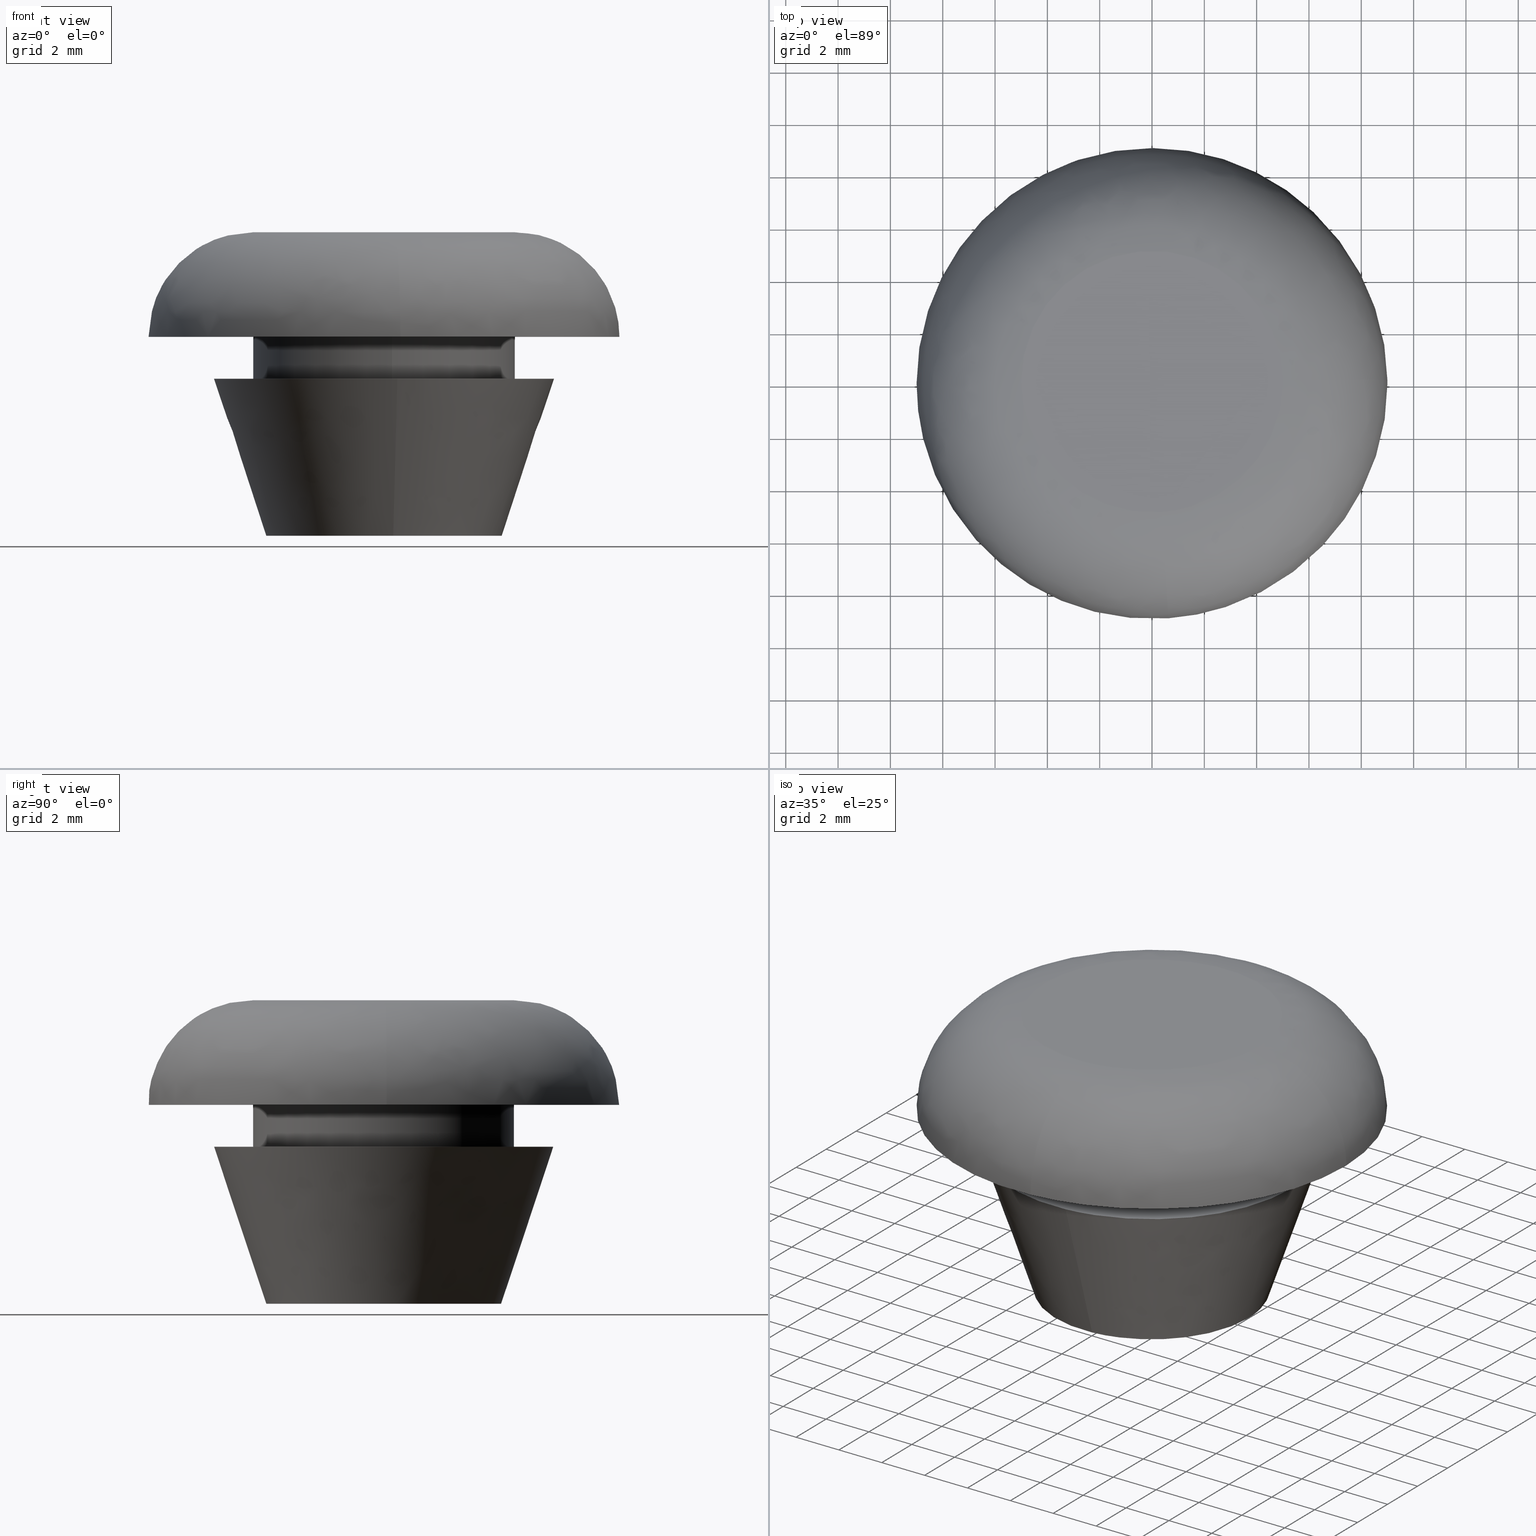
[diagram: canonical four-view strip — front | top / right | iso, engineering-drawing reading convention]
A machine part, canonical four-view strip (front | top / right | iso — engineering-drawing reading convention). The complete STEP part file that produces these views, byte-faithful:
ISO-10303-21;
HEADER;
/****************************************************************
 * Generated by software with PDE/Lib inside                    *
 * PDElib Version 4.4.1-0003, patched  Thursday August 19 11:58 *
 * International Technegroup Inc. (www.iti-oh.com)              *
 ****************************************************************/
FILE_DESCRIPTION((''),'2;1');
FILE_NAME('','2005-12-15T09:46:20',(''),(''),'','CADfix','');
FILE_SCHEMA(('AUTOMOTIVE_DESIGN'));
ENDSEC;
DATA;
#5=APPLICATION_CONTEXT('automotive design');
#6=APPLICATION_PROTOCOL_DEFINITION('Draft International Standard','automotive_design',1998,#5);
#7=PRODUCT_CONTEXT('None',#5,'mechanical');
#8=PRODUCT('cushion','','None',(#7));
#9=PRODUCT_RELATED_PRODUCT_CATEGORY('part','description',(#8));
#10=PRODUCT_DEFINITION_FORMATION('None','None',#8);
#11=PRODUCT_DEFINITION_CONTEXT('part definition',#5,'design');
#12=PRODUCT_DEFINITION('None','None',#10,#11);
#18=(NAMED_UNIT(*)PLANE_ANGLE_UNIT()SI_UNIT($,.RADIAN.));
#19=DIMENSIONAL_EXPONENTS(0.0,0.0,0.0,0.0,0.0,0.0,0.0);
#20=PLANE_ANGLE_MEASURE_WITH_UNIT(PLANE_ANGLE_MEASURE(0.017453292500000),#18);
#24=(CONVERSION_BASED_UNIT('DEGREE',#20)NAMED_UNIT(#19)PLANE_ANGLE_UNIT());
#28=(NAMED_UNIT(*)SI_UNIT($,.STERADIAN.)SOLID_ANGLE_UNIT());
#32=(LENGTH_UNIT()NAMED_UNIT(*)SI_UNIT(.MILLI.,.METRE.));
#34=UNCERTAINTY_MEASURE_WITH_UNIT(LENGTH_MEASURE(0.001000000000000),#32,'DISTANCE_ACCURACY_VALUE','');
#36=(GEOMETRIC_REPRESENTATION_CONTEXT(3)GLOBAL_UNCERTAINTY_ASSIGNED_CONTEXT((#34))GLOBAL_UNIT_ASSIGNED_CONTEXT((#24,#28,#32))REPRESENTATION_CONTEXT('None','None'));
#37=AXIS2_PLACEMENT_3D('',#38,#39,#40);
#38=CARTESIAN_POINT('',(0.0,0.0,0.0));
#39=DIRECTION('',(0.0,0.0,1.0));
#40=DIRECTION('',(1.0,0.0,0.0));
#41=ADVANCED_BREP_SHAPE_REPRESENTATION('',(#37,#895),#36);
#42=PRODUCT_DEFINITION_SHAPE('','',#12);
#43=SHAPE_DEFINITION_REPRESENTATION(#42,#41);
#44=CARTESIAN_POINT('',(0.354102703970275,-2.979028579091000,7.790000000000001));
#45=CARTESIAN_POINT('',(0.268844185913933,-2.989162846345817,7.790000000000001));
#46=CARTESIAN_POINT('',(0.183145618604571,-2.994404395265600,7.790000000000001));
#47=CARTESIAN_POINT('',(-2.811258776661029,-3.177550013870171,7.790000000000001));
#48=CARTESIAN_POINT('',(-2.994404395265600,-0.183145618604571,7.790000000000001));
#49=CARTESIAN_POINT('',(-3.177550013870171,2.811258776661029,7.790000000000001));
#50=CARTESIAN_POINT('',(-0.183145618604571,2.994404395265600,7.790000000000001));
#51=CARTESIAN_POINT('',(0.354102703970275,-2.979028579091000,-0.194750000000000));
#52=CARTESIAN_POINT('',(0.268844185913933,-2.989162846345817,-0.194750000000000));
#53=CARTESIAN_POINT('',(0.183145618604571,-2.994404395265600,-0.194750000000000));
#54=CARTESIAN_POINT('',(-2.811258776661029,-3.177550013870171,-0.194750000000000));
#55=CARTESIAN_POINT('',(-2.994404395265600,-0.183145618604571,-0.194750000000000));
#56=CARTESIAN_POINT('',(-3.177550013870171,2.811258776661029,-0.194750000000000));
#57=CARTESIAN_POINT('',(-0.183145618604571,2.994404395265600,-0.194750000000000));
#65=(BOUNDED_SURFACE()B_SPLINE_SURFACE(2,1,((#44,#51),(#45,#52),(#46,#53),(#47,#54),(#48,#55),(#49,#56),(#50,#57)),.UNSPECIFIED.,.F.,.F.,.U.)B_SPLINE_SURFACE_WITH_KNOTS((3,2,2,3),(2,2),(0.0,0.198822509939086,5.169385258416225,10.139948006893370),(0.0,7.984750000000001),.UNSPECIFIED.)GEOMETRIC_REPRESENTATION_ITEM()RATIONAL_B_SPLINE_SURFACE(((0.977505800795127,0.977505800795127),(0.988284271247462,0.988284271247462),(1.0,1.0),(0.707106781186548,0.707106781186548),(1.0,1.0),(0.707106781186548,0.707106781186548),(1.0,1.0)))REPRESENTATION_ITEM('')SURFACE());
#66=CARTESIAN_POINT('',(0.354102703981138,-2.979028579089708,7.600000000000000));
#67=VERTEX_POINT('',#66);
#68=CARTESIAN_POINT('',(-3.0,0.0,7.600000000000000));
#69=VERTEX_POINT('',#68);
#70=CARTESIAN_POINT('',(0.354102703981138,-2.979028579089708,7.600000000000000));
#71=CARTESIAN_POINT('',(0.177672358966708,-3.0,7.600000000000000));
#72=CARTESIAN_POINT('',(0.0,-3.0,7.600000000000000));
#73=CARTESIAN_POINT('',(-3.0,-3.0,7.600000000000000));
#74=CARTESIAN_POINT('',(-3.0,0.0,7.600000000000000));
#82=(BOUNDED_CURVE()B_SPLINE_CURVE(2,(#70,#71,#72,#73,#74),.UNSPECIFIED.,.F.,.U.)B_SPLINE_CURVE_WITH_KNOTS((3,2,3),(0.229562473514412,0.250000000000000,0.500000000000000),.UNSPECIFIED.)CURVE()GEOMETRIC_REPRESENTATION_ITEM()RATIONAL_B_SPLINE_CURVE((0.956026754185470,0.976055948332203,1.0,0.707106781186548,1.0))REPRESENTATION_ITEM(''));
#83=EDGE_CURVE('',#67,#69,#82,.T.);
#84=ORIENTED_EDGE('',*,*,#83,.F.);
#85=CARTESIAN_POINT('',(0.354097191598257,-2.979029234309628,5.394914E-016));
#86=VERTEX_POINT('',#85);
#87=CARTESIAN_POINT('',(0.354102703981138,-2.979028579089708,7.600000000000000));
#88=CARTESIAN_POINT('',(0.354097191598257,-2.979029234309628,5.394914E-016));
#89=QUASI_UNIFORM_CURVE('',1,(#87,#88),.UNSPECIFIED.,.F.,.U.);
#90=EDGE_CURVE('',#67,#86,#89,.T.);
#91=ORIENTED_EDGE('',*,*,#90,.T.);
#92=CARTESIAN_POINT('',(-3.0,0.0,0.0));
#93=VERTEX_POINT('',#92);
#94=CARTESIAN_POINT('',(0.354097191598257,-2.979029234309628,5.394914E-016));
#95=CARTESIAN_POINT('',(0.177669573632440,-3.000000000000000,0.0));
#96=CARTESIAN_POINT('',(0.0,-3.0,0.0));
#97=CARTESIAN_POINT('',(-3.0,-3.0,0.0));
#98=CARTESIAN_POINT('',(-3.0,0.0,0.0));
#106=(BOUNDED_CURVE()B_SPLINE_CURVE(2,(#94,#95,#96,#97,#98),.UNSPECIFIED.,.F.,.U.)B_SPLINE_CURVE_WITH_KNOTS((3,2,3),(0.229562786238015,0.250000000000000,0.500000000000000),.UNSPECIFIED.)CURVE()GEOMETRIC_REPRESENTATION_ITEM()RATIONAL_B_SPLINE_CURVE((0.956027367137448,0.976056314710695,1.0,0.707106781186548,1.0))REPRESENTATION_ITEM(''));
#107=EDGE_CURVE('',#86,#93,#106,.T.);
#108=ORIENTED_EDGE('',*,*,#107,.T.);
#109=CARTESIAN_POINT('',(-0.183145618620295,2.994404395264639,1.110223E-016));
#110=VERTEX_POINT('',#109);
#111=CARTESIAN_POINT('',(-3.0,0.0,0.0));
#112=CARTESIAN_POINT('',(-3.0,2.822118200687374,0.0));
#113=CARTESIAN_POINT('',(-0.183145618620295,2.994404395264639,1.110223E-016));
#121=(BOUNDED_CURVE()B_SPLINE_CURVE(2,(#111,#112,#113),.UNSPECIFIED.,.F.,.U.)B_SPLINE_CURVE_WITH_KNOTS((3,3),(0.500000000000000,0.739332962240155),.UNSPECIFIED.)CURVE()GEOMETRIC_REPRESENTATION_ITEM()RATIONAL_B_SPLINE_CURVE((1.0,0.719603993285290,0.976072041669316))REPRESENTATION_ITEM(''));
#122=EDGE_CURVE('',#93,#110,#121,.T.);
#123=ORIENTED_EDGE('',*,*,#122,.T.);
#124=CARTESIAN_POINT('',(-0.183145618620296,2.994404395264639,7.600000000000000));
#125=VERTEX_POINT('',#124);
#126=CARTESIAN_POINT('',(-0.183145618620296,2.994404395264639,7.600000000000000));
#127=CARTESIAN_POINT('',(-0.183145618620295,2.994404395264639,1.110223E-016));
#128=QUASI_UNIFORM_CURVE('',1,(#126,#127),.UNSPECIFIED.,.F.,.U.);
#129=EDGE_CURVE('',#125,#110,#128,.T.);
#130=ORIENTED_EDGE('',*,*,#129,.F.);
#131=CARTESIAN_POINT('',(-3.0,0.0,7.600000000000000));
#132=CARTESIAN_POINT('',(-3.0,2.822118200687374,7.599999999999999));
#133=CARTESIAN_POINT('',(-0.183145618620296,2.994404395264639,7.600000000000000));
#141=(BOUNDED_CURVE()B_SPLINE_CURVE(2,(#131,#132,#133),.UNSPECIFIED.,.F.,.U.)B_SPLINE_CURVE_WITH_KNOTS((3,3),(0.500000000000000,0.739332962240155),.UNSPECIFIED.)CURVE()GEOMETRIC_REPRESENTATION_ITEM()RATIONAL_B_SPLINE_CURVE((1.0,0.719603993285290,0.976072041669316))REPRESENTATION_ITEM(''));
#142=EDGE_CURVE('',#69,#125,#141,.T.);
#143=ORIENTED_EDGE('',*,*,#142,.F.);
#144=EDGE_LOOP('',(#84,#91,#108,#123,#130,#143));
#145=FACE_OUTER_BOUND('',#144,.T.);
#146=ADVANCED_FACE('',(#145),#65,.F.);
#147=CARTESIAN_POINT('',(-0.224409090726152,2.991880613194139,7.790000000000003));
#148=CARTESIAN_POINT('',(-0.203836405582317,2.993138892521066,7.790000000000002));
#149=CARTESIAN_POINT('',(2.811258776661029,3.177550013870171,7.790000000000001));
#150=CARTESIAN_POINT('',(2.994404395265600,0.183145618604571,7.790000000000001));
#151=CARTESIAN_POINT('',(3.167358590197582,-2.644630472518504,7.790000000000001));
#152=CARTESIAN_POINT('',(0.333038185362532,-2.981532416432200,7.790000000000000));
#153=CARTESIAN_POINT('',(0.312086881210587,-2.984022796519179,7.790000000000001));
#154=CARTESIAN_POINT('',(-0.224409090726152,2.991880613194139,-0.194750000000000));
#155=CARTESIAN_POINT('',(-0.203836405582317,2.993138892521066,-0.194750000000000));
#156=CARTESIAN_POINT('',(2.811258776661029,3.177550013870171,-0.194750000000000));
#157=CARTESIAN_POINT('',(2.994404395265600,0.183145618604571,-0.194750000000000));
#158=CARTESIAN_POINT('',(3.167358590197582,-2.644630472518504,-0.194750000000000));
#159=CARTESIAN_POINT('',(0.333038185362532,-2.981532416432200,-0.194750000000000));
#160=CARTESIAN_POINT('',(0.312086881210587,-2.984022796519179,-0.194750000000000));
#168=(BOUNDED_SURFACE()B_SPLINE_SURFACE(2,1,((#147,#154),(#148,#155),(#149,#156),(#150,#157),(#151,#158),(#152,#159),(#153,#160)),.UNSPECIFIED.,.F.,.F.,.U.)B_SPLINE_SURFACE_WITH_KNOTS((3,1,2,1,3),(2,2),(0.0,0.048711545651409,5.019274294128548,9.791014532666601,9.839732435613659),(0.0,7.984750000000002),.UNSPECIFIED.)GEOMETRIC_REPRESENTATION_ITEM()RATIONAL_B_SPLINE_SURFACE(((1.005740710708698,1.005740710708698),(1.002870355354349,1.002870355354349),(0.707106781186548,0.707106781186548),(1.0,1.0),(0.718822509939086,0.718822509939086),(0.980146872359787,0.980146872359787),(0.982787943924448,0.982787943924448)))REPRESENTATION_ITEM('')SURFACE());
#169=CARTESIAN_POINT('',(3.0,0.0,7.600000000000000));
#170=VERTEX_POINT('',#169);
#171=CARTESIAN_POINT('',(3.0,0.0,7.600000000000000));
#172=CARTESIAN_POINT('',(3.0,-2.664523577834536,7.600000000000000));
#173=CARTESIAN_POINT('',(0.354102703981138,-2.979028579089708,7.600000000000000));
#181=(BOUNDED_CURVE()B_SPLINE_CURVE(2,(#171,#172,#173),.UNSPECIFIED.,.F.,.U.)B_SPLINE_CURVE_WITH_KNOTS((3,3),(0.0,0.229562473514412),.UNSPECIFIED.)CURVE()GEOMETRIC_REPRESENTATION_ITEM()RATIONAL_B_SPLINE_CURVE((1.0,0.731050832854344,0.956026754185470))REPRESENTATION_ITEM(''));
#182=EDGE_CURVE('',#170,#67,#181,.T.);
#183=ORIENTED_EDGE('',*,*,#182,.F.);
#184=CARTESIAN_POINT('',(-0.183145618620296,2.994404395264640,7.600000000000000));
#185=CARTESIAN_POINT('',(-0.091658289911536,3.000000000000000,7.600000000000001));
#186=CARTESIAN_POINT('',(0.0,3.0,7.600000000000000));
#187=CARTESIAN_POINT('',(3.0,3.0,7.600000000000000));
#188=CARTESIAN_POINT('',(3.0,0.0,7.600000000000000));
#196=(BOUNDED_CURVE()B_SPLINE_CURVE(2,(#184,#185,#186,#187,#188),.UNSPECIFIED.,.F.,.U.)B_SPLINE_CURVE_WITH_KNOTS((3,2,3),(0.739332962240156,0.750000000000000,1.0),.UNSPECIFIED.)CURVE()GEOMETRIC_REPRESENTATION_ITEM()RATIONAL_B_SPLINE_CURVE((0.976072041669318,0.987502787901259,1.0,0.707106781186548,1.0))REPRESENTATION_ITEM(''));
#197=EDGE_CURVE('',#125,#170,#196,.T.);
#198=ORIENTED_EDGE('',*,*,#197,.F.);
#199=ORIENTED_EDGE('',*,*,#129,.T.);
#200=CARTESIAN_POINT('',(3.0,0.0,0.0));
#201=VERTEX_POINT('',#200);
#202=CARTESIAN_POINT('',(-0.183145618620295,2.994404395264639,1.110223E-016));
#203=CARTESIAN_POINT('',(-0.091658289911535,3.0,0.0));
#204=CARTESIAN_POINT('',(0.0,3.0,0.0));
#205=CARTESIAN_POINT('',(3.0,3.0,0.0));
#206=CARTESIAN_POINT('',(3.0,0.0,0.0));
#214=(BOUNDED_CURVE()B_SPLINE_CURVE(2,(#202,#203,#204,#205,#206),.UNSPECIFIED.,.F.,.U.)B_SPLINE_CURVE_WITH_KNOTS((3,2,3),(0.739332962240156,0.750000000000000,1.0),.UNSPECIFIED.)CURVE()GEOMETRIC_REPRESENTATION_ITEM()RATIONAL_B_SPLINE_CURVE((0.976072041669318,0.987502787901259,1.0,0.707106781186548,1.0))REPRESENTATION_ITEM(''));
#215=EDGE_CURVE('',#110,#201,#214,.T.);
#216=ORIENTED_EDGE('',*,*,#215,.T.);
#217=CARTESIAN_POINT('',(3.0,0.0,0.0));
#218=CARTESIAN_POINT('',(3.000000000000001,-2.664528542979987,0.0));
#219=CARTESIAN_POINT('',(0.354097191598257,-2.979029234309628,5.394914E-016));
#227=(BOUNDED_CURVE()B_SPLINE_CURVE(2,(#217,#218,#219),.UNSPECIFIED.,.F.,.U.)B_SPLINE_CURVE_WITH_KNOTS((3,3),(0.0,0.229562786238015),.UNSPECIFIED.)CURVE()GEOMETRIC_REPRESENTATION_ITEM()RATIONAL_B_SPLINE_CURVE((1.0,0.731050466475852,0.956027367137448))REPRESENTATION_ITEM(''));
#228=EDGE_CURVE('',#201,#86,#227,.T.);
#229=ORIENTED_EDGE('',*,*,#228,.T.);
#230=ORIENTED_EDGE('',*,*,#90,.F.);
#231=EDGE_LOOP('',(#183,#198,#199,#216,#229,#230));
#232=FACE_OUTER_BOUND('',#231,.T.);
#233=ADVANCED_FACE('',(#232),#168,.F.);
#234=CARTESIAN_POINT('',(-0.590171173283792,4.965047631818332,7.640000000000002));
#235=CARTESIAN_POINT('',(-0.448073643189888,4.981938077243028,7.640000000000002));
#236=CARTESIAN_POINT('',(-0.305242697674285,4.990673992109334,7.640000000000001));
#237=CARTESIAN_POINT('',(4.685431294435048,5.295916689783620,7.640000000000001));
#238=CARTESIAN_POINT('',(4.990673992109334,0.305242697674285,7.640000000000001));
#239=CARTESIAN_POINT('',(5.295916689783620,-4.685431294435048,7.640000000000001));
#240=CARTESIAN_POINT('',(0.305242697674285,-4.990673992109334,7.640000000000001));
#241=CARTESIAN_POINT('',(-0.590171173283792,4.965047631818332,5.959000000000001));
#242=CARTESIAN_POINT('',(-0.448073643189888,4.981938077243028,5.959000000000000));
#243=CARTESIAN_POINT('',(-0.305242697674285,4.990673992109334,5.958999999999999));
#244=CARTESIAN_POINT('',(4.685431294435048,5.295916689783620,5.958999999999999));
#245=CARTESIAN_POINT('',(4.990673992109334,0.305242697674285,5.958999999999999));
#246=CARTESIAN_POINT('',(5.295916689783620,-4.685431294435048,5.958999999999999));
#247=CARTESIAN_POINT('',(0.305242697674285,-4.990673992109334,5.958999999999999));
#255=(BOUNDED_SURFACE()B_SPLINE_SURFACE(2,1,((#234,#241),(#235,#242),(#236,#243),(#237,#244),(#238,#245),(#239,#246),(#240,#247)),.UNSPECIFIED.,.F.,.F.,.U.)B_SPLINE_SURFACE_WITH_KNOTS((3,2,2,3),(2,2),(0.0,0.331370849898476,8.615642097360375,16.899913344822270),(0.0,1.0),.UNSPECIFIED.)GEOMETRIC_REPRESENTATION_ITEM()RATIONAL_B_SPLINE_SURFACE(((0.977505800795127,0.977505800795127),(0.988284271247462,0.988284271247462),(1.0,1.0),(0.707106781186548,0.707106781186548),(1.0,1.0),(0.707106781186548,0.707106781186548),(1.0,1.0)))REPRESENTATION_ITEM('')SURFACE());
#256=CARTESIAN_POINT('',(-0.590169455614432,4.965047835988770,7.600000000000016));
#257=VERTEX_POINT('',#256);
#258=CARTESIAN_POINT('',(5.0,0.0,7.600000000000000));
#259=VERTEX_POINT('',#258);
#260=CARTESIAN_POINT('',(-0.590169455614432,4.965047835988770,7.600000000000016));
#261=CARTESIAN_POINT('',(-0.296119730345424,4.999999999999999,7.600000000000000));
#262=CARTESIAN_POINT('',(0.0,5.0,7.600000000000000));
#263=CARTESIAN_POINT('',(5.000000000000001,5.000000000000001,7.600000000000000));
#264=CARTESIAN_POINT('',(5.0,0.0,7.600000000000000));
#272=(BOUNDED_CURVE()B_SPLINE_CURVE(2,(#260,#261,#262,#263,#264),.UNSPECIFIED.,.F.,.U.)B_SPLINE_CURVE_WITH_KNOTS((3,2,3),(0.229562531982699,0.250000000000000,0.500000000000000),.UNSPECIFIED.)CURVE()GEOMETRIC_REPRESENTATION_ITEM()RATIONAL_B_SPLINE_CURVE((0.956026868785737,0.976056016832063,1.0,0.707106781186548,1.0))REPRESENTATION_ITEM(''));
#273=EDGE_CURVE('',#257,#259,#272,.T.);
#274=ORIENTED_EDGE('',*,*,#273,.T.);
#275=CARTESIAN_POINT('',(0.305237013104272,-4.990674339786032,7.599999999999929));
#276=VERTEX_POINT('',#275);
#277=CARTESIAN_POINT('',(5.0,0.0,7.600000000000000));
#278=CARTESIAN_POINT('',(4.999999999999999,-4.703535702044791,7.599999999999999));
#279=CARTESIAN_POINT('',(0.305237013104272,-4.990674339786032,7.599999999999930));
#287=(BOUNDED_CURVE()B_SPLINE_CURVE(2,(#277,#278,#279),.UNSPECIFIED.,.F.,.U.)B_SPLINE_CURVE_WITH_KNOTS((3,3),(0.500000000000000,0.739333158779441),.UNSPECIFIED.)CURVE()GEOMETRIC_REPRESENTATION_ITEM()RATIONAL_B_SPLINE_CURVE((1.0,0.719603763025194,0.976072462890779))REPRESENTATION_ITEM(''));
#288=EDGE_CURVE('',#259,#276,#287,.T.);
#289=ORIENTED_EDGE('',*,*,#288,.T.);
#290=CARTESIAN_POINT('',(0.305237081557413,-4.990674335599413,6.0));
#291=VERTEX_POINT('',#290);
#292=CARTESIAN_POINT('',(0.305237013104272,-4.990674339786032,7.599999999999929));
#293=CARTESIAN_POINT('',(0.305237081557413,-4.990674335599413,6.0));
#294=QUASI_UNIFORM_CURVE('',1,(#292,#293),.UNSPECIFIED.,.F.,.U.);
#295=EDGE_CURVE('',#276,#291,#294,.T.);
#296=ORIENTED_EDGE('',*,*,#295,.T.);
#297=CARTESIAN_POINT('',(5.0,0.0,6.0));
#298=VERTEX_POINT('',#297);
#299=CARTESIAN_POINT('',(5.0,0.0,6.0));
#300=CARTESIAN_POINT('',(4.999999999999999,-4.703535637409559,6.0));
#301=CARTESIAN_POINT('',(0.305237081557413,-4.990674335599414,6.000000000000001));
#309=(BOUNDED_CURVE()B_SPLINE_CURVE(2,(#299,#300,#301),.UNSPECIFIED.,.F.,.U.)B_SPLINE_CURVE_WITH_KNOTS((3,3),(0.500000000000000,0.739333156412752),.UNSPECIFIED.)CURVE()GEOMETRIC_REPRESENTATION_ITEM()RATIONAL_B_SPLINE_CURVE((1.0,0.719603765797943,0.976072457818505))REPRESENTATION_ITEM(''));
#310=EDGE_CURVE('',#298,#291,#309,.T.);
#311=ORIENTED_EDGE('',*,*,#310,.F.);
#312=CARTESIAN_POINT('',(-0.590169476332178,4.965047833526166,6.0));
#313=VERTEX_POINT('',#312);
#314=CARTESIAN_POINT('',(-0.590169476332178,4.965047833526166,6.000000000000001));
#315=CARTESIAN_POINT('',(-0.296119740813809,5.0,6.0));
#316=CARTESIAN_POINT('',(0.0,5.0,6.0));
#317=CARTESIAN_POINT('',(5.000000000000001,5.000000000000001,6.0));
#318=CARTESIAN_POINT('',(5.0,0.0,6.0));
#326=(BOUNDED_CURVE()B_SPLINE_CURVE(2,(#314,#315,#316,#317,#318),.UNSPECIFIED.,.F.,.U.)B_SPLINE_CURVE_WITH_KNOTS((3,2,3),(0.229562531277496,0.250000000000000,0.500000000000000),.UNSPECIFIED.)CURVE()GEOMETRIC_REPRESENTATION_ITEM()RATIONAL_B_SPLINE_CURVE((0.956026867403510,0.976056016005866,1.0,0.707106781186548,1.0))REPRESENTATION_ITEM(''));
#327=EDGE_CURVE('',#313,#298,#326,.T.);
#328=ORIENTED_EDGE('',*,*,#327,.F.);
#329=CARTESIAN_POINT('',(-0.590169455614432,4.965047835988770,7.600000000000016));
#330=CARTESIAN_POINT('',(-0.590169476332178,4.965047833526166,6.0));
#331=QUASI_UNIFORM_CURVE('',1,(#329,#330),.UNSPECIFIED.,.F.,.U.);
#332=EDGE_CURVE('',#257,#313,#331,.T.);
#333=ORIENTED_EDGE('',*,*,#332,.F.);
#334=EDGE_LOOP('',(#274,#289,#296,#311,#328,#333));
#335=FACE_OUTER_BOUND('',#334,.T.);
#336=ADVANCED_FACE('',(#335),#255,.T.);
#337=CARTESIAN_POINT('',(0.305242697674285,-4.990673992109334,7.640000000000001));
#338=CARTESIAN_POINT('',(-4.685431294435048,-5.295916689783620,7.640000000000001));
#339=CARTESIAN_POINT('',(-4.990673992109334,-0.305242697674285,7.640000000000001));
#340=CARTESIAN_POINT('',(-5.278930983662638,4.407717454197504,7.640000000000001));
#341=CARTESIAN_POINT('',(-0.590171173283792,4.965047631818332,7.640000000000002));
#342=CARTESIAN_POINT('',(0.305242697674285,-4.990673992109334,5.958999999999999));
#343=CARTESIAN_POINT('',(-4.685431294435048,-5.295916689783620,5.958999999999999));
#344=CARTESIAN_POINT('',(-4.990673992109334,-0.305242697674285,5.958999999999999));
#345=CARTESIAN_POINT('',(-5.278930983662638,4.407717454197504,5.958999999999998));
#346=CARTESIAN_POINT('',(-0.590171173283792,4.965047631818332,5.959000000000001));
#354=(BOUNDED_SURFACE()B_SPLINE_SURFACE(2,1,((#337,#342),(#338,#343),(#339,#344),(#340,#345),(#341,#346)),.UNSPECIFIED.,.F.,.F.,.U.)B_SPLINE_SURFACE_WITH_KNOTS((3,2,3),(2,2),(0.0,8.284271247461899,16.237171645025320),(0.0,1.0),.UNSPECIFIED.)GEOMETRIC_REPRESENTATION_ITEM()RATIONAL_B_SPLINE_SURFACE(((1.0,1.0),(0.707106781186548,0.707106781186548),(1.0,1.0),(0.718822509939086,0.718822509939086),(0.977505800795127,0.977505800795127)))REPRESENTATION_ITEM('')SURFACE());
#355=CARTESIAN_POINT('',(-5.0,0.0,7.600000000000000));
#356=VERTEX_POINT('',#355);
#357=CARTESIAN_POINT('',(-5.0,0.0,7.600000000000000));
#358=CARTESIAN_POINT('',(-5.0,4.440874176902134,7.600000000000000));
#359=CARTESIAN_POINT('',(-0.590169455614432,4.965047835988770,7.600000000000016));
#367=(BOUNDED_CURVE()B_SPLINE_CURVE(2,(#357,#358,#359),.UNSPECIFIED.,.F.,.U.)B_SPLINE_CURVE_WITH_KNOTS((3,3),(0.0,0.229562531982699),.UNSPECIFIED.)CURVE()GEOMETRIC_REPRESENTATION_ITEM()RATIONAL_B_SPLINE_CURVE((1.0,0.731050764354485,0.956026868785737))REPRESENTATION_ITEM(''));
#368=EDGE_CURVE('',#356,#257,#367,.T.);
#369=ORIENTED_EDGE('',*,*,#368,.T.);
#370=ORIENTED_EDGE('',*,*,#332,.T.);
#371=CARTESIAN_POINT('',(-5.0,0.0,6.0));
#372=VERTEX_POINT('',#371);
#373=CARTESIAN_POINT('',(-5.0,0.0,6.0));
#374=CARTESIAN_POINT('',(-5.0,4.440874158241168,6.0));
#375=CARTESIAN_POINT('',(-0.590169476332178,4.965047833526166,6.000000000000001));
#383=(BOUNDED_CURVE()B_SPLINE_CURVE(2,(#373,#374,#375),.UNSPECIFIED.,.F.,.U.)B_SPLINE_CURVE_WITH_KNOTS((3,3),(0.0,0.229562531277496),.UNSPECIFIED.)CURVE()GEOMETRIC_REPRESENTATION_ITEM()RATIONAL_B_SPLINE_CURVE((1.0,0.731050765180682,0.956026867403510))REPRESENTATION_ITEM(''));
#384=EDGE_CURVE('',#372,#313,#383,.T.);
#385=ORIENTED_EDGE('',*,*,#384,.F.);
#386=CARTESIAN_POINT('',(0.305237081557413,-4.990674335599414,6.000000000000001));
#387=CARTESIAN_POINT('',(0.152761000561227,-5.0,6.000000000000001));
#388=CARTESIAN_POINT('',(0.0,-5.0,6.0));
#389=CARTESIAN_POINT('',(-5.000000000000001,-5.000000000000001,6.0));
#390=CARTESIAN_POINT('',(-5.0,0.0,6.0));
#398=(BOUNDED_CURVE()B_SPLINE_CURVE(2,(#386,#387,#388,#389,#390),.UNSPECIFIED.,.F.,.U.)B_SPLINE_CURVE_WITH_KNOTS((3,2,3),(0.739333156412752,0.750000000000000,1.0),.UNSPECIFIED.)CURVE()GEOMETRIC_REPRESENTATION_ITEM()RATIONAL_B_SPLINE_CURVE((0.976072457818505,0.987503015388605,1.0,0.707106781186548,1.0))REPRESENTATION_ITEM(''));
#399=EDGE_CURVE('',#291,#372,#398,.T.);
#400=ORIENTED_EDGE('',*,*,#399,.F.);
#401=ORIENTED_EDGE('',*,*,#295,.F.);
#402=CARTESIAN_POINT('',(0.305237013104272,-4.990674339786032,7.599999999999930));
#403=CARTESIAN_POINT('',(0.152760966238695,-5.0,7.600000000000001));
#404=CARTESIAN_POINT('',(0.0,-5.0,7.600000000000000));
#405=CARTESIAN_POINT('',(-5.000000000000001,-5.000000000000001,7.600000000000000));
#406=CARTESIAN_POINT('',(-5.0,0.0,7.600000000000000));
#414=(BOUNDED_CURVE()B_SPLINE_CURVE(2,(#402,#403,#404,#405,#406),.UNSPECIFIED.,.F.,.U.)B_SPLINE_CURVE_WITH_KNOTS((3,2,3),(0.739333158779441,0.750000000000000,1.0),.UNSPECIFIED.)CURVE()GEOMETRIC_REPRESENTATION_ITEM()RATIONAL_B_SPLINE_CURVE((0.976072462890779,0.987503018161353,1.0,0.707106781186548,1.0))REPRESENTATION_ITEM(''));
#415=EDGE_CURVE('',#276,#356,#414,.T.);
#416=ORIENTED_EDGE('',*,*,#415,.T.);
#417=EDGE_LOOP('',(#369,#370,#385,#400,#401,#416));
#418=FACE_OUTER_BOUND('',#417,.T.);
#419=ADVANCED_FACE('',(#418),#354,.T.);
#420=CARTESIAN_POINT('',(-0.349142975988913,4.436282135112418,-0.150000000000000));
#421=CARTESIAN_POINT('',(-4.785425111101330,4.087139159123505,-0.150000000000000));
#422=CARTESIAN_POINT('',(-4.436282135112418,-0.349142975988913,-0.150000000000000));
#423=CARTESIAN_POINT('',(-4.087139159123505,-4.785425111101330,-0.150000000000000));
#424=CARTESIAN_POINT('',(0.349142975988913,-4.436282135112418,-0.150000000000000));
#425=CARTESIAN_POINT('',(-0.514005150887048,6.531054682619153,6.153750000000001));
#426=CARTESIAN_POINT('',(-7.045059833506200,6.017049531732106,6.153750000000003));
#427=CARTESIAN_POINT('',(-6.531054682619153,-0.514005150887048,6.153750000000001));
#428=CARTESIAN_POINT('',(-6.017049531732106,-7.045059833506200,6.153750000000003));
#429=CARTESIAN_POINT('',(0.514005150887048,-6.531054682619153,6.153750000000001));
#437=(BOUNDED_SURFACE()B_SPLINE_SURFACE(2,1,((#420,#425),(#421,#426),(#422,#427),(#423,#428),(#424,#429)),.UNSPECIFIED.,.F.,.F.,.U.)B_SPLINE_SURFACE_WITH_KNOTS((3,2,3),(2,2),(0.0,10.854466401986951,21.708932803973909),(0.0,6.644735933428809),.UNSPECIFIED.)GEOMETRIC_REPRESENTATION_ITEM()RATIONAL_B_SPLINE_SURFACE(((1.0,1.0),(0.707106781186548,0.707106781186548),(1.0,1.0),(0.707106781186548,0.707106781186548),(1.0,1.0)))REPRESENTATION_ITEM('')SURFACE());
#438=CARTESIAN_POINT('',(-4.500000000000000,0.0,0.0));
#439=VERTEX_POINT('',#438);
#440=CARTESIAN_POINT('',(-0.353063810381927,4.486127613227898,-0.000001661209573));
#441=VERTEX_POINT('',#440);
#442=CARTESIAN_POINT('',(-4.500000000000000,0.0,0.0));
#443=CARTESIAN_POINT('',(-4.499999978277276,4.159758868250052,-0.000000830604787));
#444=CARTESIAN_POINT('',(-0.353063810381927,4.486127613227898,-0.000001661209573));
#452=(BOUNDED_CURVE()B_SPLINE_CURVE(2,(#442,#443,#444),.UNSPECIFIED.,.F.,.U.)B_SPLINE_CURVE_WITH_KNOTS((3,3),(0.0,0.236331379997369),.UNSPECIFIED.)CURVE()GEOMETRIC_REPRESENTATION_ITEM()RATIONAL_B_SPLINE_CURVE((1.0,0.723120565623782,0.969723521799744))REPRESENTATION_ITEM(''));
#453=EDGE_CURVE('',#439,#441,#452,.T.);
#454=ORIENTED_EDGE('',*,*,#453,.F.);
#455=CARTESIAN_POINT('',(0.353063810381927,-4.486127613227898,-0.000001661209573));
#456=VERTEX_POINT('',#455);
#457=CARTESIAN_POINT('',(0.353063810381927,-4.486127613227898,-0.000001661209573));
#458=CARTESIAN_POINT('',(0.176804395584852,-4.499999457994606,-0.000001631042669));
#459=CARTESIAN_POINT('',(-0.000000041803015,-4.499999468839201,-0.000001598408310));
#460=CARTESIAN_POINT('',(-4.500000020080290,-4.499999744854223,-0.000000767803524));
#461=CARTESIAN_POINT('',(-4.500000000000000,0.0,0.0));
#469=(BOUNDED_CURVE()B_SPLINE_CURVE(2,(#457,#458,#459,#460,#461),.UNSPECIFIED.,.F.,.U.)B_SPLINE_CURVE_WITH_KNOTS((3,2,3),(0.736331379997369,0.750000000000000,1.0),.UNSPECIFIED.)CURVE()GEOMETRIC_REPRESENTATION_ITEM()RATIONAL_B_SPLINE_CURVE((0.969723521799744,0.983986215562766,1.0,0.707106781186547,1.0))REPRESENTATION_ITEM(''));
#470=EDGE_CURVE('',#456,#439,#469,.T.);
#471=ORIENTED_EDGE('',*,*,#470,.F.);
#472=CARTESIAN_POINT('',(0.509980382880330,-6.479961963647005,5.999997009518591));
#473=VERTEX_POINT('',#472);
#474=CARTESIAN_POINT('',(0.353063810381927,-4.486127613227898,-0.000001661209573));
#475=CARTESIAN_POINT('',(0.509980382880330,-6.479961963647005,5.999997009518591));
#476=QUASI_UNIFORM_CURVE('',1,(#474,#475),.UNSPECIFIED.,.F.,.U.);
#477=EDGE_CURVE('',#456,#473,#476,.T.);
#478=ORIENTED_EDGE('',*,*,#477,.T.);
#479=CARTESIAN_POINT('',(-6.500000000000000,0.0,6.0));
#480=VERTEX_POINT('',#479);
#481=CARTESIAN_POINT('',(0.509980382880330,-6.479961963647005,5.999997009518592));
#482=CARTESIAN_POINT('',(0.255383779694899,-6.499999024290850,5.999997063824478));
#483=CARTESIAN_POINT('',(-0.000000075253000,-6.499999043813085,5.999997122572222));
#484=CARTESIAN_POINT('',(-6.500000036148163,-6.499999540690751,5.999998617812927));
#485=CARTESIAN_POINT('',(-6.500000000000000,0.0,6.0));
#493=(BOUNDED_CURVE()B_SPLINE_CURVE(2,(#481,#482,#483,#484,#485),.UNSPECIFIED.,.F.,.U.)B_SPLINE_CURVE_WITH_KNOTS((3,2,3),(0.736331397486609,0.750000000000000,1.0),.UNSPECIFIED.)CURVE()GEOMETRIC_REPRESENTATION_ITEM()RATIONAL_B_SPLINE_CURVE((0.969723558298482,0.983986236052685,1.0,0.707106781186547,1.0))REPRESENTATION_ITEM(''));
#494=EDGE_CURVE('',#473,#480,#493,.T.);
#495=ORIENTED_EDGE('',*,*,#494,.T.);
#496=CARTESIAN_POINT('',(-0.509980382880330,6.479961963647005,5.999997009518590));
#497=VERTEX_POINT('',#496);
#498=CARTESIAN_POINT('',(-6.500000000000000,0.0,6.0));
#499=CARTESIAN_POINT('',(-6.499999960895162,6.008541104187772,5.999998504759296));
#500=CARTESIAN_POINT('',(-0.509980382880331,6.479961963647006,5.999997009518590));
#508=(BOUNDED_CURVE()B_SPLINE_CURVE(2,(#498,#499,#500),.UNSPECIFIED.,.F.,.U.)B_SPLINE_CURVE_WITH_KNOTS((3,3),(0.0,0.236331397486609),.UNSPECIFIED.)CURVE()GEOMETRIC_REPRESENTATION_ITEM()RATIONAL_B_SPLINE_CURVE((1.0,0.723120545133863,0.969723558298482))REPRESENTATION_ITEM(''));
#509=EDGE_CURVE('',#480,#497,#508,.T.);
#510=ORIENTED_EDGE('',*,*,#509,.T.);
#511=CARTESIAN_POINT('',(-0.353063810381927,4.486127613227898,-0.000001661209573));
#512=CARTESIAN_POINT('',(-0.509980382880330,6.479961963647005,5.999997009518590));
#513=QUASI_UNIFORM_CURVE('',1,(#511,#512),.UNSPECIFIED.,.F.,.U.);
#514=EDGE_CURVE('',#441,#497,#513,.T.);
#515=ORIENTED_EDGE('',*,*,#514,.F.);
#516=EDGE_LOOP('',(#454,#471,#478,#495,#510,#515));
#517=FACE_OUTER_BOUND('',#516,.T.);
#518=ADVANCED_FACE('',(#517),#437,.T.);
#519=CARTESIAN_POINT('',(0.349142975988913,-4.436282135112418,-0.150000000000000));
#520=CARTESIAN_POINT('',(4.785425111101330,-4.087139159123505,-0.150000000000000));
#521=CARTESIAN_POINT('',(4.436282135112418,0.349142975988913,-0.150000000000000));
#522=CARTESIAN_POINT('',(4.087139159123505,4.785425111101330,-0.150000000000000));
#523=CARTESIAN_POINT('',(-0.349142975988913,4.436282135112418,-0.150000000000000));
#524=CARTESIAN_POINT('',(0.514005150887048,-6.531054682619153,6.153750000000001));
#525=CARTESIAN_POINT('',(7.045059833506200,-6.017049531732106,6.153750000000003));
#526=CARTESIAN_POINT('',(6.531054682619153,0.514005150887048,6.153750000000001));
#527=CARTESIAN_POINT('',(6.017049531732106,7.045059833506200,6.153750000000003));
#528=CARTESIAN_POINT('',(-0.514005150887048,6.531054682619153,6.153750000000001));
#536=(BOUNDED_SURFACE()B_SPLINE_SURFACE(2,1,((#519,#524),(#520,#525),(#521,#526),(#522,#527),(#523,#528)),.UNSPECIFIED.,.F.,.F.,.U.)B_SPLINE_SURFACE_WITH_KNOTS((3,2,3),(2,2),(0.0,10.854466401986951,21.708932803973909),(0.0,6.644735933428809),.UNSPECIFIED.)GEOMETRIC_REPRESENTATION_ITEM()RATIONAL_B_SPLINE_SURFACE(((1.0,1.0),(0.707106781186548,0.707106781186548),(1.0,1.0),(0.707106781186548,0.707106781186548),(1.0,1.0)))REPRESENTATION_ITEM('')SURFACE());
#537=CARTESIAN_POINT('',(4.500000000000000,0.0,0.0));
#538=VERTEX_POINT('',#537);
#539=CARTESIAN_POINT('',(-0.353063810381927,4.486127613227898,-0.000001661209573));
#540=CARTESIAN_POINT('',(-0.176804395584851,4.499999457994604,-0.000001631042669));
#541=CARTESIAN_POINT('',(0.000000041803015,4.499999468839200,-0.000001598408310));
#542=CARTESIAN_POINT('',(4.500000020080290,4.499999744854221,-0.000000767803524));
#543=CARTESIAN_POINT('',(4.500000000000000,0.0,0.0));
#551=(BOUNDED_CURVE()B_SPLINE_CURVE(2,(#539,#540,#541,#542,#543),.UNSPECIFIED.,.F.,.U.)B_SPLINE_CURVE_WITH_KNOTS((3,2,3),(0.236331379997369,0.250000000000000,0.500000000000000),.UNSPECIFIED.)CURVE()GEOMETRIC_REPRESENTATION_ITEM()RATIONAL_B_SPLINE_CURVE((0.969723521799744,0.983986215562766,1.0,0.707106781186547,1.0))REPRESENTATION_ITEM(''));
#552=EDGE_CURVE('',#441,#538,#551,.T.);
#553=ORIENTED_EDGE('',*,*,#552,.F.);
#554=ORIENTED_EDGE('',*,*,#514,.T.);
#555=CARTESIAN_POINT('',(6.500000000000000,0.0,6.0));
#556=VERTEX_POINT('',#555);
#557=CARTESIAN_POINT('',(-0.509980382880331,6.479961963647006,5.999997009518590));
#558=CARTESIAN_POINT('',(-0.255383779694900,6.499999024290850,5.999997063824477));
#559=CARTESIAN_POINT('',(0.000000075252999,6.499999043813086,5.999997122572222));
#560=CARTESIAN_POINT('',(6.500000036148161,6.499999540690751,5.999998617812927));
#561=CARTESIAN_POINT('',(6.500000000000000,0.0,6.0));
#569=(BOUNDED_CURVE()B_SPLINE_CURVE(2,(#557,#558,#559,#560,#561),.UNSPECIFIED.,.F.,.U.)B_SPLINE_CURVE_WITH_KNOTS((3,2,3),(0.236331397486609,0.250000000000000,0.500000000000000),.UNSPECIFIED.)CURVE()GEOMETRIC_REPRESENTATION_ITEM()RATIONAL_B_SPLINE_CURVE((0.969723558298482,0.983986236052685,1.0,0.707106781186547,1.0))REPRESENTATION_ITEM(''));
#570=EDGE_CURVE('',#497,#556,#569,.T.);
#571=ORIENTED_EDGE('',*,*,#570,.T.);
#572=CARTESIAN_POINT('',(6.500000000000000,0.0,6.0));
#573=CARTESIAN_POINT('',(6.499999960895162,-6.008541104187774,5.999998504759294));
#574=CARTESIAN_POINT('',(0.509980382880330,-6.479961963647006,5.999997009518592));
#582=(BOUNDED_CURVE()B_SPLINE_CURVE(2,(#572,#573,#574),.UNSPECIFIED.,.F.,.U.)B_SPLINE_CURVE_WITH_KNOTS((3,3),(0.500000000000000,0.736331397486609),.UNSPECIFIED.)CURVE()GEOMETRIC_REPRESENTATION_ITEM()RATIONAL_B_SPLINE_CURVE((1.0,0.723120545133863,0.969723558298482))REPRESENTATION_ITEM(''));
#583=EDGE_CURVE('',#556,#473,#582,.T.);
#584=ORIENTED_EDGE('',*,*,#583,.T.);
#585=ORIENTED_EDGE('',*,*,#477,.F.);
#586=CARTESIAN_POINT('',(4.500000000000000,0.0,0.0));
#587=CARTESIAN_POINT('',(4.499999978277277,-4.159758868250052,-0.000000830604787));
#588=CARTESIAN_POINT('',(0.353063810381927,-4.486127613227898,-0.000001661209573));
#596=(BOUNDED_CURVE()B_SPLINE_CURVE(2,(#586,#587,#588),.UNSPECIFIED.,.F.,.U.)B_SPLINE_CURVE_WITH_KNOTS((3,3),(0.500000000000000,0.736331379997369),.UNSPECIFIED.)CURVE()GEOMETRIC_REPRESENTATION_ITEM()RATIONAL_B_SPLINE_CURVE((1.0,0.723120565623782,0.969723521799744))REPRESENTATION_ITEM(''));
#597=EDGE_CURVE('',#538,#456,#596,.T.);
#598=ORIENTED_EDGE('',*,*,#597,.F.);
#599=EDGE_LOOP('',(#553,#554,#571,#584,#585,#598));
#600=FACE_OUTER_BOUND('',#599,.T.);
#601=ADVANCED_FACE('',(#600),#536,.T.);
#602=CARTESIAN_POINT('',(0.329269773378350,-4.710356630886044,11.590317432338558));
#603=CARTESIAN_POINT('',(0.194461520395833,-4.719780181242726,11.590317432338558));
#604=CARTESIAN_POINT('',(0.059334969729161,-4.721478320945675,11.590317432338562));
#605=CARTESIAN_POINT('',(-4.662143351216513,-4.780813290674835,11.590317432338557));
#606=CARTESIAN_POINT('',(-4.721478320945675,-0.059334969729162,11.590317432338562));
#607=CARTESIAN_POINT('',(-4.780813290674835,4.662143351216513,11.590317432338557));
#608=CARTESIAN_POINT('',(-0.059334969729162,4.721478320945675,11.590317432338562));
#609=CARTESIAN_POINT('',(4.662143351216511,4.780813290674835,11.590317432338557));
#610=CARTESIAN_POINT('',(4.721478320945675,0.059334969729162,11.590317432338562));
#611=CARTESIAN_POINT('',(0.649226438384217,-9.287484932531916,11.910149075431363));
#612=CARTESIAN_POINT('',(0.383422866283867,-9.306065496342045,11.910149075431363));
#613=CARTESIAN_POINT('',(0.116991701587607,-9.309413745347454,11.910149075431365));
#614=CARTESIAN_POINT('',(-9.192422043759848,-9.426405446935064,11.910149075431368));
#615=CARTESIAN_POINT('',(-9.309413745347454,-0.116991701587607,11.910149075431365));
#616=CARTESIAN_POINT('',(-9.426405446935064,9.192422043759848,11.910149075431368));
#617=CARTESIAN_POINT('',(-0.116991701587608,9.309413745347454,11.910149075431365));
#618=CARTESIAN_POINT('',(9.192422043759844,9.426405446935064,11.910149075431368));
#619=CARTESIAN_POINT('',(9.309413745347454,0.116991701587608,11.910149075431365));
#620=CARTESIAN_POINT('',(0.626923573369336,-8.968432117471709,7.321851360532401));
#621=CARTESIAN_POINT('',(0.370251146950270,-8.986374383483012,7.321851360532398));
#622=CARTESIAN_POINT('',(0.112972687613278,-8.989607610146154,7.321851360532397));
#623=CARTESIAN_POINT('',(-8.876634922532873,-9.102580297759431,7.321851360532397));
#624=CARTESIAN_POINT('',(-8.989607610146152,-0.112972687613279,7.321851360532397));
#625=CARTESIAN_POINT('',(-9.102580297759431,8.876634922532873,7.321851360532397));
#626=CARTESIAN_POINT('',(-0.112972687613279,8.989607610146152,7.321851360532397));
#627=CARTESIAN_POINT('',(8.876634922532873,9.102580297759431,7.321851360532397));
#628=CARTESIAN_POINT('',(8.989607610146152,0.112972687613280,7.321851360532397));
#636=(BOUNDED_SURFACE()B_SPLINE_SURFACE(2,2,((#602,#611,#620),(#603,#612,#621),(#604,#613,#622),(#605,#614,#623),(#606,#615,#624),(#607,#616,#625),(#608,#617,#626),(#609,#618,#627),(#610,#619,#628)),.UNSPECIFIED.,.F.,.F.,.U.)B_SPLINE_SURFACE_WITH_KNOTS((3,2,2,2,3),(3,3),(0.0,0.595825258484334,15.491470926187390,30.387116593890450,45.282762261593497),(0.0,7.289496406772124),.UNSPECIFIED.)GEOMETRIC_REPRESENTATION_ITEM()RATIONAL_B_SPLINE_SURFACE(((0.895729780707462,0.587800190257190,0.895729757996359),(0.905606538837210,0.594281564922667,0.905606515875684),(0.916342144609695,0.601326536800914,0.916342121375969),(0.647951744340539,0.425202071879348,0.647951727911814),(0.916342144609695,0.601326536800914,0.916342121375969),(0.647951744340539,0.425202071879348,0.647951727911814),(0.916342144609695,0.601326536800914,0.916342121375969),(0.647951744340539,0.425202071879348,0.647951727911814),(0.916342144609695,0.601326536800914,0.916342121375969)))REPRESENTATION_ITEM('')SURFACE());
#637=CARTESIAN_POINT('',(0.348666257935958,-4.987828369300749,11.600000000000000));
#638=VERTEX_POINT('',#637);
#639=CARTESIAN_POINT('',(-5.0,0.0,11.600000000000000));
#640=VERTEX_POINT('',#639);
#641=CARTESIAN_POINT('',(0.348666257935958,-4.987828369300749,11.600000000000001));
#642=CARTESIAN_POINT('',(0.174545579425353,-4.999999999999999,11.600000000000005));
#643=CARTESIAN_POINT('',(0.0,-5.0,11.600000000000000));
#644=CARTESIAN_POINT('',(-5.000000000000001,-5.000000000000001,11.600000000000001));
#645=CARTESIAN_POINT('',(-5.0,0.0,11.600000000000000));
#653=(BOUNDED_CURVE()B_SPLINE_CURVE(2,(#641,#642,#643,#644,#645),.UNSPECIFIED.,.F.,.U.)B_SPLINE_CURVE_WITH_KNOTS((3,2,3),(0.737833686531576,0.750000000000000,1.0),.UNSPECIFIED.)CURVE()GEOMETRIC_REPRESENTATION_ITEM()RATIONAL_B_SPLINE_CURVE((0.972879876379540,0.985746277148559,1.0,0.707106781186548,1.0))REPRESENTATION_ITEM(''));
#654=EDGE_CURVE('',#638,#640,#653,.T.);
#655=ORIENTED_EDGE('',*,*,#654,.T.);
#656=CARTESIAN_POINT('',(4.999605221082165,0.062830199452536,11.600000000000000));
#657=VERTEX_POINT('',#656);
#658=CARTESIAN_POINT('',(-5.0,0.0,11.600000000000000));
#659=CARTESIAN_POINT('',(-5.000000000000001,5.000000000000001,11.600000000000001));
#660=CARTESIAN_POINT('',(0.0,5.0,11.600000000000000));
#661=CARTESIAN_POINT('',(4.937559649467487,5.000000000000001,11.600000000000001));
#662=CARTESIAN_POINT('',(4.999605221082165,0.062830199452536,11.599999999999998));
#670=(BOUNDED_CURVE()B_SPLINE_CURVE(2,(#658,#659,#660,#661,#662),.UNSPECIFIED.,.F.,.U.)B_SPLINE_CURVE_WITH_KNOTS((3,2,3),(0.0,0.250000000000000,0.497784295919268),.UNSPECIFIED.)CURVE()GEOMETRIC_REPRESENTATION_ITEM()RATIONAL_B_SPLINE_CURVE((1.0,0.707106781186548,1.0,0.709702639987123,0.994854295638349))REPRESENTATION_ITEM(''));
#671=EDGE_CURVE('',#640,#657,#670,.T.);
#672=ORIENTED_EDGE('',*,*,#671,.T.);
#673=CARTESIAN_POINT('',(8.999289397834284,0.113094358954944,7.600000000009858));
#674=VERTEX_POINT('',#673);
#675=CARTESIAN_POINT('',(4.999605221082164,0.062830199452536,11.600000000000005));
#676=CARTESIAN_POINT('',(8.999289397814627,0.113094358949919,11.599999999872937));
#677=CARTESIAN_POINT('',(8.999289397834284,0.113094358954943,7.600000000009859));
#685=(BOUNDED_CURVE()B_SPLINE_CURVE(2,(#675,#676,#677),.UNSPECIFIED.,.F.,.U.)B_SPLINE_CURVE_WITH_KNOTS((3,3),(-1.734750791625395,-0.265249208346720),.UNSPECIFIED.)CURVE()GEOMETRIC_REPRESENTATION_ITEM()RATIONAL_B_SPLINE_CURVE((0.889029723564745,0.628638946224060,0.889029723574627))REPRESENTATION_ITEM(''));
#686=EDGE_CURVE('',#657,#674,#685,.T.);
#687=ORIENTED_EDGE('',*,*,#686,.T.);
#688=CARTESIAN_POINT('',(-9.0,0.0,7.600000000000000));
#689=VERTEX_POINT('',#688);
#690=CARTESIAN_POINT('',(-9.0,0.0,7.600000000000000));
#691=CARTESIAN_POINT('',(-9.0,9.0,7.600000000000000));
#692=CARTESIAN_POINT('',(0.0,9.0,7.600000000000000));
#693=CARTESIAN_POINT('',(8.887607369156402,9.0,7.600000000000000));
#694=CARTESIAN_POINT('',(8.999289397834284,0.113094358954944,7.600000000009858));
#702=(BOUNDED_CURVE()B_SPLINE_CURVE(2,(#690,#691,#692,#693,#694),.UNSPECIFIED.,.F.,.U.)B_SPLINE_CURVE_WITH_KNOTS((3,2,3),(0.0,0.250000000000000,0.497784295921542),.UNSPECIFIED.)CURVE()GEOMETRIC_REPRESENTATION_ITEM()RATIONAL_B_SPLINE_CURVE((1.0,0.707106781186547,1.0,0.709702639984458,0.994854295643583))REPRESENTATION_ITEM(''));
#703=EDGE_CURVE('',#689,#674,#702,.T.);
#704=ORIENTED_EDGE('',*,*,#703,.F.);
#705=CARTESIAN_POINT('',(0.627599264179879,-8.978091064563827,7.600000000009816));
#706=VERTEX_POINT('',#705);
#707=CARTESIAN_POINT('',(0.627599264179879,-8.978091064563827,7.600000000009816));
#708=CARTESIAN_POINT('',(0.314182042873311,-9.000000000000002,7.600000000000000));
#709=CARTESIAN_POINT('',(0.0,-9.0,7.600000000000000));
#710=CARTESIAN_POINT('',(-9.0,-9.0,7.600000000000000));
#711=CARTESIAN_POINT('',(-9.0,0.0,7.600000000000000));
#719=(BOUNDED_CURVE()B_SPLINE_CURVE(2,(#707,#708,#709,#710,#711),.UNSPECIFIED.,.F.,.U.)B_SPLINE_CURVE_WITH_KNOTS((3,2,3),(0.737833686535100,0.750000000000000,1.0),.UNSPECIFIED.)CURVE()GEOMETRIC_REPRESENTATION_ITEM()RATIONAL_B_SPLINE_CURVE((0.972879876386993,0.985746277152688,1.0,0.707106781186547,1.0))REPRESENTATION_ITEM(''));
#720=EDGE_CURVE('',#706,#689,#719,.T.);
#721=ORIENTED_EDGE('',*,*,#720,.F.);
#722=CARTESIAN_POINT('',(0.348666257935958,-4.987828369300749,11.599999999999996));
#723=CARTESIAN_POINT('',(0.627599264177604,-8.978091064544307,11.599999999795111));
#724=CARTESIAN_POINT('',(0.627599264179879,-8.978091064563827,7.600000000009816));
#732=(BOUNDED_CURVE()B_SPLINE_CURVE(2,(#722,#723,#724),.UNSPECIFIED.,.F.,.U.)B_SPLINE_CURVE_WITH_KNOTS((3,3),(-1.734750791605177,-0.265249208346698),.UNSPECIFIED.)CURVE()GEOMETRIC_REPRESENTATION_ITEM()RATIONAL_B_SPLINE_CURVE((0.869031711856822,0.614498216543253,0.869031711873493))REPRESENTATION_ITEM(''));
#733=EDGE_CURVE('',#638,#706,#732,.T.);
#734=ORIENTED_EDGE('',*,*,#733,.F.);
#735=EDGE_LOOP('',(#655,#672,#687,#704,#721,#734));
#736=FACE_OUTER_BOUND('',#735,.T.);
#737=ADVANCED_FACE('',(#736),#636,.T.);
#738=CARTESIAN_POINT('',(4.721478320945675,0.059334969729161,11.590317432338562));
#739=CARTESIAN_POINT('',(4.777511503715815,-4.399409324072828,11.590317432338557));
#740=CARTESIAN_POINT('',(0.329270033340139,-4.710356612713833,11.590317432338558));
#741=CARTESIAN_POINT('',(9.309413745347454,0.116991701587606,11.910149075431365));
#742=CARTESIAN_POINT('',(9.419895261181553,-8.674385192290833,11.910149075431363));
#743=CARTESIAN_POINT('',(0.649226950955003,-9.287484896701482,11.910149075431365));
#744=CARTESIAN_POINT('',(8.989607610146154,0.112972687613278,7.321851360532397));
#745=CARTESIAN_POINT('',(9.096293756308588,-8.376394182386441,7.321851360532398));
#746=CARTESIAN_POINT('',(0.626924068331786,-8.968432082872154,7.321851360532400));
#754=(BOUNDED_SURFACE()B_SPLINE_SURFACE(2,2,((#738,#741,#744),(#739,#742,#745),(#740,#743,#746)),.UNSPECIFIED.,.F.,.F.,.U.)B_SPLINE_SURFACE_WITH_KNOTS((3,3),(3,3),(0.0,14.295895380395351),(0.0,7.289496406772124),.UNSPECIFIED.)GEOMETRIC_REPRESENTATION_ITEM()RATIONAL_B_SPLINE_SURFACE(((0.916342144609695,0.601326536800914,0.916342121375969),(0.658687360351305,0.432247050476211,0.658687343650380),(0.895729761869024,0.587800177894938,0.895729739157922)))REPRESENTATION_ITEM('')SURFACE());
#755=CARTESIAN_POINT('',(5.0,0.0,11.600000000000000));
#756=VERTEX_POINT('',#755);
#757=CARTESIAN_POINT('',(5.0,0.0,11.600000000000000));
#758=CARTESIAN_POINT('',(4.999999999999999,-4.662684236236403,11.600000000000001));
#759=CARTESIAN_POINT('',(0.348666257935958,-4.987828369300749,11.600000000000000));
#767=(BOUNDED_CURVE()B_SPLINE_CURVE(2,(#757,#758,#759),.UNSPECIFIED.,.F.,.U.)B_SPLINE_CURVE_WITH_KNOTS((3,3),(0.500000000000000,0.737833686531577),.UNSPECIFIED.)CURVE()GEOMETRIC_REPRESENTATION_ITEM()RATIONAL_B_SPLINE_CURVE((1.0,0.721360504037987,0.972879876379541))REPRESENTATION_ITEM(''));
#768=EDGE_CURVE('',#756,#638,#767,.T.);
#769=ORIENTED_EDGE('',*,*,#768,.T.);
#770=ORIENTED_EDGE('',*,*,#733,.T.);
#771=CARTESIAN_POINT('',(9.0,0.0,7.600000000000000));
#772=VERTEX_POINT('',#771);
#773=CARTESIAN_POINT('',(9.0,0.0,7.600000000000000));
#774=CARTESIAN_POINT('',(9.000000000000002,-8.392831625397912,7.600000000000000));
#775=CARTESIAN_POINT('',(0.627599264179879,-8.978091064563827,7.600000000009816));
#783=(BOUNDED_CURVE()B_SPLINE_CURVE(2,(#773,#774,#775),.UNSPECIFIED.,.F.,.U.)B_SPLINE_CURVE_WITH_KNOTS((3,3),(0.500000000000000,0.737833686535101),.UNSPECIFIED.)CURVE()GEOMETRIC_REPRESENTATION_ITEM()RATIONAL_B_SPLINE_CURVE((1.0,0.721360504033859,0.972879876386995))REPRESENTATION_ITEM(''));
#784=EDGE_CURVE('',#772,#706,#783,.T.);
#785=ORIENTED_EDGE('',*,*,#784,.F.);
#786=CARTESIAN_POINT('',(8.999289397834284,0.113094358954944,7.600000000009858));
#787=CARTESIAN_POINT('',(9.0,0.056549411931782,7.600000000000000));
#788=CARTESIAN_POINT('',(9.0,0.0,7.600000000000000));
#796=(BOUNDED_CURVE()B_SPLINE_CURVE(2,(#786,#787,#788),.UNSPECIFIED.,.F.,.U.)B_SPLINE_CURVE_WITH_KNOTS((3,3),(0.497784295921542,0.500000000000000),.UNSPECIFIED.)CURVE()GEOMETRIC_REPRESENTATION_ITEM()RATIONAL_B_SPLINE_CURVE((0.994854295643583,0.997404141202089,1.0))REPRESENTATION_ITEM(''));
#797=EDGE_CURVE('',#674,#772,#796,.T.);
#798=ORIENTED_EDGE('',*,*,#797,.F.);
#799=ORIENTED_EDGE('',*,*,#686,.F.);
#800=CARTESIAN_POINT('',(4.999605221082165,0.062830199452536,11.599999999999996));
#801=CARTESIAN_POINT('',(5.000000000000001,0.031416339994430,11.600000000000005));
#802=CARTESIAN_POINT('',(5.0,0.0,11.600000000000000));
#810=(BOUNDED_CURVE()B_SPLINE_CURVE(2,(#800,#801,#802),.UNSPECIFIED.,.F.,.U.)B_SPLINE_CURVE_WITH_KNOTS((3,3),(0.497784295919267,0.500000000000000),.UNSPECIFIED.)CURVE()GEOMETRIC_REPRESENTATION_ITEM()RATIONAL_B_SPLINE_CURVE((0.994854295638349,0.997404141199425,1.0))REPRESENTATION_ITEM(''));
#811=EDGE_CURVE('',#657,#756,#810,.T.);
#812=ORIENTED_EDGE('',*,*,#811,.T.);
#813=EDGE_LOOP('',(#769,#770,#785,#798,#799,#812));
#814=FACE_OUTER_BOUND('',#813,.T.);
#815=ADVANCED_FACE('',(#814),#754,.T.);
#816=CARTESIAN_POINT('',(-3.299699988370835,-3.299645593606518,7.600000000000000));
#817=CARTESIAN_POINT('',(3.299700149303376,-3.299645593606518,7.600000000000000));
#818=CARTESIAN_POINT('',(-3.299699988370835,3.299626979075955,7.600000000000000));
#819=CARTESIAN_POINT('',(3.299700149303376,3.299626979075955,7.600000000000000));
#820=B_SPLINE_SURFACE_WITH_KNOTS('',1,1,((#816,#818),(#817,#819)),.UNSPECIFIED.,.F.,.F.,.U.,(2,2),(2,2),(0.0,6.599400137674212),(0.0,6.599272572682473),.UNSPECIFIED.);
#821=ORIENTED_EDGE('',*,*,#182,.T.);
#822=ORIENTED_EDGE('',*,*,#83,.T.);
#823=ORIENTED_EDGE('',*,*,#142,.T.);
#824=ORIENTED_EDGE('',*,*,#197,.T.);
#825=EDGE_LOOP('',(#821,#822,#823,#824));
#826=FACE_OUTER_BOUND('',#825,.T.);
#827=ADVANCED_FACE('',(#826),#820,.F.);
#828=CARTESIAN_POINT('',(4.949549982556253,-4.948175848203142,0.0));
#829=CARTESIAN_POINT('',(-4.949550223955065,-4.948175848203142,0.0));
#830=CARTESIAN_POINT('',(4.949549982556253,4.948175928669413,0.0));
#831=CARTESIAN_POINT('',(-4.949550223955065,4.948175928669413,0.0));
#832=B_SPLINE_SURFACE_WITH_KNOTS('',1,1,((#828,#830),(#829,#831)),.UNSPECIFIED.,.F.,.F.,.U.,(2,2),(2,2),(0.0,9.899100206511317),(0.0,9.896351776872555),.UNSPECIFIED.);
#833=ORIENTED_EDGE('',*,*,#453,.T.);
#834=ORIENTED_EDGE('',*,*,#552,.T.);
#835=ORIENTED_EDGE('',*,*,#597,.T.);
#836=ORIENTED_EDGE('',*,*,#470,.T.);
#837=EDGE_LOOP('',(#833,#834,#835,#836));
#838=FACE_OUTER_BOUND('',#837,.T.);
#839=ORIENTED_EDGE('',*,*,#122,.F.);
#840=ORIENTED_EDGE('',*,*,#107,.F.);
#841=ORIENTED_EDGE('',*,*,#228,.F.);
#842=ORIENTED_EDGE('',*,*,#215,.F.);
#843=EDGE_LOOP('',(#839,#840,#841,#842));
#844=FACE_BOUND('',#843,.T.);
#845=ADVANCED_FACE('',(#838,#844),#832,.T.);
#846=CARTESIAN_POINT('',(-5.499499980618060,-5.498896302368586,11.600000000000000));
#847=CARTESIAN_POINT('',(5.499500248838961,-5.498896302368586,11.600000000000000));
#848=CARTESIAN_POINT('',(-5.499499980618060,5.499368180857264,11.600000000000000));
#849=CARTESIAN_POINT('',(5.499500248838961,5.499368180857264,11.600000000000000));
#850=B_SPLINE_SURFACE_WITH_KNOTS('',1,1,((#846,#848),(#847,#849)),.UNSPECIFIED.,.F.,.F.,.U.,(2,2),(2,2),(0.0,10.999000229457019),(0.0,10.998264483225849),.UNSPECIFIED.);
#851=ORIENTED_EDGE('',*,*,#654,.F.);
#852=ORIENTED_EDGE('',*,*,#768,.F.);
#853=ORIENTED_EDGE('',*,*,#811,.F.);
#854=ORIENTED_EDGE('',*,*,#671,.F.);
#855=EDGE_LOOP('',(#851,#852,#853,#854));
#856=FACE_OUTER_BOUND('',#855,.T.);
#857=ADVANCED_FACE('',(#856),#850,.T.);
#858=CARTESIAN_POINT('',(9.899099965112507,-9.898013720965656,7.600000000000000));
#859=CARTESIAN_POINT('',(-9.899100447910129,-9.898013720965656,7.600000000000000));
#860=CARTESIAN_POINT('',(9.899099965112507,9.898862726337711,7.600000000000000));
#861=CARTESIAN_POINT('',(-9.899100447910129,9.898862726337711,7.600000000000000));
#862=B_SPLINE_SURFACE_WITH_KNOTS('',1,1,((#858,#860),(#859,#861)),.UNSPECIFIED.,.F.,.F.,.U.,(2,2),(2,2),(0.0,19.798200413022631),(0.0,19.796876447303369),.UNSPECIFIED.);
#863=ORIENTED_EDGE('',*,*,#703,.T.);
#864=ORIENTED_EDGE('',*,*,#797,.T.);
#865=ORIENTED_EDGE('',*,*,#784,.T.);
#866=ORIENTED_EDGE('',*,*,#720,.T.);
#867=EDGE_LOOP('',(#863,#864,#865,#866));
#868=FACE_OUTER_BOUND('',#867,.T.);
#869=ORIENTED_EDGE('',*,*,#288,.F.);
#870=ORIENTED_EDGE('',*,*,#273,.F.);
#871=ORIENTED_EDGE('',*,*,#368,.F.);
#872=ORIENTED_EDGE('',*,*,#415,.F.);
#873=EDGE_LOOP('',(#869,#870,#871,#872));
#874=FACE_BOUND('',#873,.T.);
#875=ADVANCED_FACE('',(#868,#874),#862,.T.);
#876=CARTESIAN_POINT('',(-7.149349974803477,-7.147364870001820,6.0));
#877=CARTESIAN_POINT('',(7.149350323490650,-7.147364870001820,6.0));
#878=CARTESIAN_POINT('',(-7.149349974803477,7.147365218688990,6.0));
#879=CARTESIAN_POINT('',(7.149350323490650,7.147365218688990,6.0));
#880=B_SPLINE_SURFACE_WITH_KNOTS('',1,1,((#876,#878),(#877,#879)),.UNSPECIFIED.,.F.,.F.,.U.,(2,2),(2,2),(0.0,14.298700298294129),(0.0,14.294730088690811),.UNSPECIFIED.);
#881=ORIENTED_EDGE('',*,*,#494,.F.);
#882=ORIENTED_EDGE('',*,*,#583,.F.);
#883=ORIENTED_EDGE('',*,*,#570,.F.);
#884=ORIENTED_EDGE('',*,*,#509,.F.);
#885=EDGE_LOOP('',(#881,#882,#883,#884));
#886=FACE_OUTER_BOUND('',#885,.T.);
#887=ORIENTED_EDGE('',*,*,#310,.T.);
#888=ORIENTED_EDGE('',*,*,#399,.T.);
#889=ORIENTED_EDGE('',*,*,#384,.T.);
#890=ORIENTED_EDGE('',*,*,#327,.T.);
#891=EDGE_LOOP('',(#887,#888,#889,#890));
#892=FACE_BOUND('',#891,.T.);
#893=ADVANCED_FACE('',(#886,#892),#880,.T.);
#894=CLOSED_SHELL('',(#146,#233,#336,#419,#518,#601,#737,#815,#827,#845,#857,#875,#893));
#895=MANIFOLD_SOLID_BREP('cushion',#894);
#901=(NAMED_UNIT(*)PLANE_ANGLE_UNIT()SI_UNIT($,.RADIAN.));
#902=DIMENSIONAL_EXPONENTS(0.0,0.0,0.0,0.0,0.0,0.0,0.0);
#903=PLANE_ANGLE_MEASURE_WITH_UNIT(PLANE_ANGLE_MEASURE(0.017453292500000),#901);
#907=(CONVERSION_BASED_UNIT('DEGREE',#903)NAMED_UNIT(#902)PLANE_ANGLE_UNIT());
#911=(NAMED_UNIT(*)SI_UNIT($,.STERADIAN.)SOLID_ANGLE_UNIT());
#915=(LENGTH_UNIT()NAMED_UNIT(*)SI_UNIT(.MILLI.,.METRE.));
#917=UNCERTAINTY_MEASURE_WITH_UNIT(LENGTH_MEASURE(0.001000000000000),#915,'DISTANCE_ACCURACY_VALUE','');
#919=(GEOMETRIC_REPRESENTATION_CONTEXT(3)GLOBAL_UNCERTAINTY_ASSIGNED_CONTEXT((#917))GLOBAL_UNIT_ASSIGNED_CONTEXT((#907,#911,#915))REPRESENTATION_CONTEXT('','3D'));
ENDSEC;
END-ISO-10303-21;
